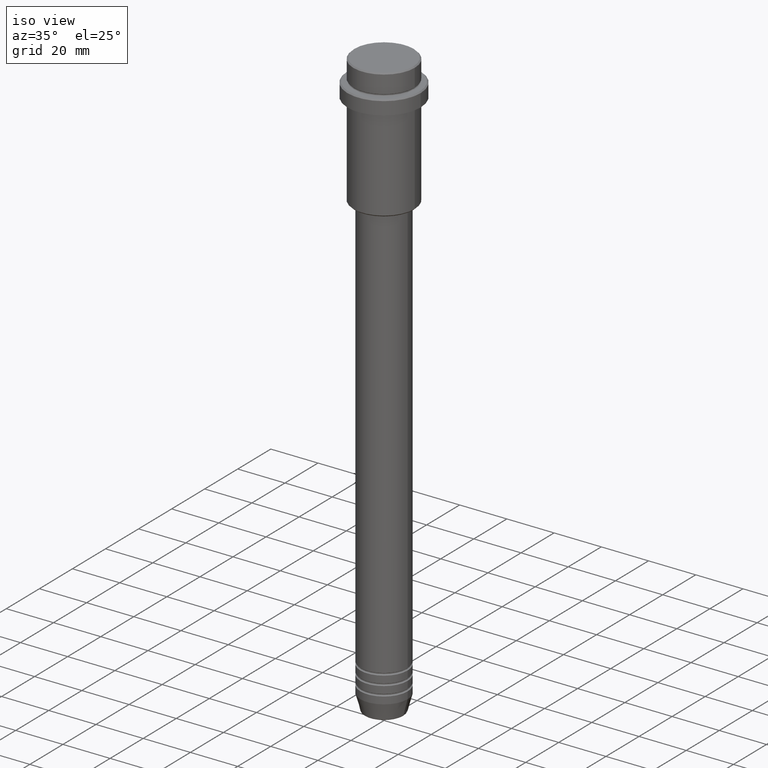
[diagram: clean part render]
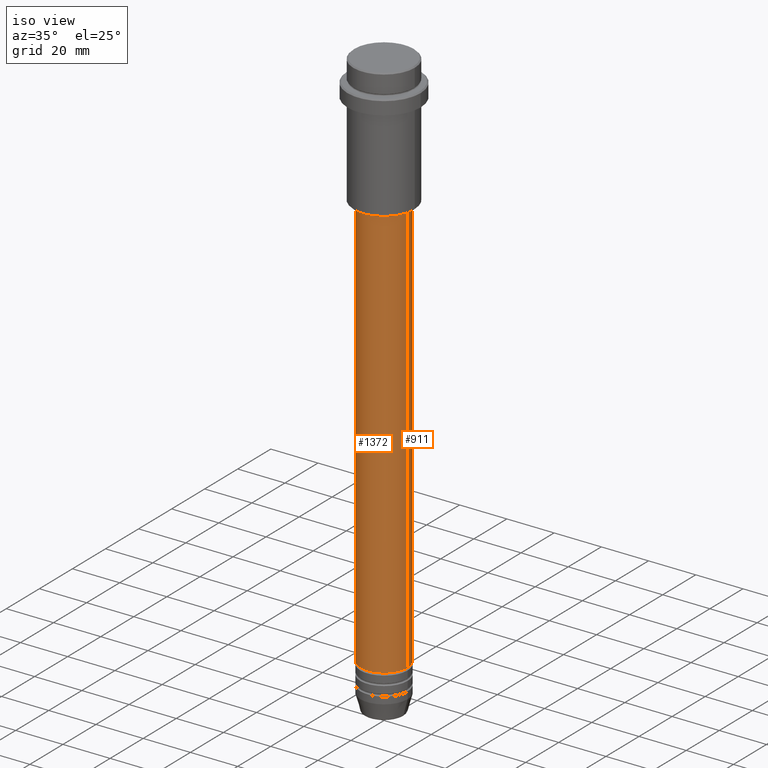
[diagram: same view with one multi-face feature highlighted, each face labeled with its STEP entity id]
A machine part, iso view. The highlighted faces form ONE feature: a constant-radius fillet chain: 2 tangent blend faces with common blend radius 10 mm. The faces share edges in the B-rep.
Their STEP definitions:
[1] entity #911 (Cylinder):
#42 = EDGE_CURVE ( 'NONE', #500, #678, #1108, .T. ) ;
#78 = CARTESIAN_POINT ( 'NONE',  ( 0.000000000000000000, 0.000000000000000000, -56.00000000000000000 ) ) ;
#85 = DIRECTION ( 'NONE',  ( 1.000000000000000000, 0.000000000000000000, 0.000000000000000000 ) ) ;
#99 = DIRECTION ( 'NONE',  ( 1.000000000000000000, 0.000000000000000000, 0.000000000000000000 ) ) ;
#102 = CARTESIAN_POINT ( 'NONE',  ( 10.00000000000000178, 0.000000000000000000, -56.00000000000000000 ) ) ;
#111 = CARTESIAN_POINT ( 'NONE',  ( -10.00000000000000178, 1.224646799147353454E-15, 0.000000000000000000 ) ) ;
#125 = VECTOR ( 'NONE', #1414, 1000.000000000000000 ) ;
#167 = EDGE_LOOP ( 'NONE', ( #940, #582, #616, #766 ) ) ;
#176 = CYLINDRICAL_SURFACE ( 'NONE', #1357, 10.00000000000000178 ) ;
#208 = DIRECTION ( 'NONE',  ( -0.000000000000000000, -0.000000000000000000, 1.000000000000000000 ) ) ;
#338 = LINE ( 'NONE', #653, #125 ) ;
#369 = VECTOR ( 'NONE', #1006, 1000.000000000000000 ) ;
#434 = CIRCLE ( 'NONE', #1242, 10.00000000000000178 ) ;
#500 = VERTEX_POINT ( 'NONE', #504 ) ;
#502 = EDGE_CURVE ( 'NONE', #1361, #808, #434, .T. ) ;
#504 = CARTESIAN_POINT ( 'NONE',  ( 10.00000000000000000, 0.000000000000000000, -230.9999999999998863 ) ) ;
#582 = ORIENTED_EDGE ( 'NONE', *, *, #1164, .T. ) ;
#593 = FACE_OUTER_BOUND ( 'NONE', #167, .T. ) ;
#605 = CARTESIAN_POINT ( 'NONE',  ( 0.000000000000000000, 0.000000000000000000, 0.000000000000000000 ) ) ;
#612 = EDGE_CURVE ( 'NONE', #500, #1361, #338, .T. ) ;
#616 = ORIENTED_EDGE ( 'NONE', *, *, #502, .F. ) ;
#653 = CARTESIAN_POINT ( 'NONE',  ( 10.00000000000000178, 0.000000000000000000, 0.000000000000000000 ) ) ;
#678 = VERTEX_POINT ( 'NONE', #1310 ) ;
#703 = AXIS2_PLACEMENT_3D ( 'NONE', #1079, #208, #963 ) ;
#766 = ORIENTED_EDGE ( 'NONE', *, *, #612, .F. ) ;
#808 = VERTEX_POINT ( 'NONE', #1359 ) ;
#911 = ADVANCED_FACE ( 'NONE', ( #593 ), #176, .T. ) ;
#940 = ORIENTED_EDGE ( 'NONE', *, *, #42, .T. ) ;
#963 = DIRECTION ( 'NONE',  ( 1.000000000000000000, 0.000000000000000000, 0.000000000000000000 ) ) ;
#1006 = DIRECTION ( 'NONE',  ( -0.000000000000000000, -0.000000000000000000, 1.000000000000000000 ) ) ;
#1055 = DIRECTION ( 'NONE',  ( -0.000000000000000000, -0.000000000000000000, 1.000000000000000000 ) ) ;
#1079 = CARTESIAN_POINT ( 'NONE',  ( 0.000000000000000000, 0.000000000000000000, -230.9999999999998863 ) ) ;
#1094 = LINE ( 'NONE', #111, #369 ) ;
#1108 = CIRCLE ( 'NONE', #703, 10.00000000000000000 ) ;
#1164 = EDGE_CURVE ( 'NONE', #678, #808, #1094, .T. ) ;
#1242 = AXIS2_PLACEMENT_3D ( 'NONE', #78, #1387, #99 ) ;
#1310 = CARTESIAN_POINT ( 'NONE',  ( -10.00000000000000000, 1.224646799147353256E-15, -230.9999999999998863 ) ) ;
#1357 = AXIS2_PLACEMENT_3D ( 'NONE', #605, #1055, #85 ) ;
#1359 = CARTESIAN_POINT ( 'NONE',  ( -10.00000000000000178, 1.224646799147353454E-15, -56.00000000000000000 ) ) ;
#1361 = VERTEX_POINT ( 'NONE', #102 ) ;
#1387 = DIRECTION ( 'NONE',  ( -0.000000000000000000, -0.000000000000000000, 1.000000000000000000 ) ) ;
#1414 = DIRECTION ( 'NONE',  ( -0.000000000000000000, -0.000000000000000000, 1.000000000000000000 ) ) ;
[2] entity #1372 (Cylinder):
#30 = ORIENTED_EDGE ( 'NONE', *, *, #612, .T. ) ;
#102 = CARTESIAN_POINT ( 'NONE',  ( 10.00000000000000178, 0.000000000000000000, -56.00000000000000000 ) ) ;
#111 = CARTESIAN_POINT ( 'NONE',  ( -10.00000000000000178, 1.224646799147353454E-15, 0.000000000000000000 ) ) ;
#125 = VECTOR ( 'NONE', #1414, 1000.000000000000000 ) ;
#138 = DIRECTION ( 'NONE',  ( -0.000000000000000000, -0.000000000000000000, 1.000000000000000000 ) ) ;
#146 = AXIS2_PLACEMENT_3D ( 'NONE', #1140, #138, #355 ) ;
#243 = AXIS2_PLACEMENT_3D ( 'NONE', #711, #1155, #1261 ) ;
#310 = CARTESIAN_POINT ( 'NONE',  ( 0.000000000000000000, 0.000000000000000000, 0.000000000000000000 ) ) ;
#338 = LINE ( 'NONE', #653, #125 ) ;
#341 = EDGE_CURVE ( 'NONE', #678, #500, #1040, .T. ) ;
#355 = DIRECTION ( 'NONE',  ( 1.000000000000000000, 0.000000000000000000, 0.000000000000000000 ) ) ;
#361 = ORIENTED_EDGE ( 'NONE', *, *, #341, .T. ) ;
#369 = VECTOR ( 'NONE', #1006, 1000.000000000000000 ) ;
#485 = AXIS2_PLACEMENT_3D ( 'NONE', #310, #1169, #743 ) ;
#500 = VERTEX_POINT ( 'NONE', #504 ) ;
#504 = CARTESIAN_POINT ( 'NONE',  ( 10.00000000000000000, 0.000000000000000000, -230.9999999999998863 ) ) ;
#612 = EDGE_CURVE ( 'NONE', #500, #1361, #338, .T. ) ;
#653 = CARTESIAN_POINT ( 'NONE',  ( 10.00000000000000178, 0.000000000000000000, 0.000000000000000000 ) ) ;
#678 = VERTEX_POINT ( 'NONE', #1310 ) ;
#711 = CARTESIAN_POINT ( 'NONE',  ( 0.000000000000000000, 0.000000000000000000, -56.00000000000000000 ) ) ;
#743 = DIRECTION ( 'NONE',  ( 1.000000000000000000, 0.000000000000000000, 0.000000000000000000 ) ) ;
#808 = VERTEX_POINT ( 'NONE', #1359 ) ;
#964 = FACE_OUTER_BOUND ( 'NONE', #1234, .T. ) ;
#1006 = DIRECTION ( 'NONE',  ( -0.000000000000000000, -0.000000000000000000, 1.000000000000000000 ) ) ;
#1040 = CIRCLE ( 'NONE', #146, 10.00000000000000000 ) ;
#1053 = ORIENTED_EDGE ( 'NONE', *, *, #1164, .F. ) ;
#1075 = ORIENTED_EDGE ( 'NONE', *, *, #1183, .F. ) ;
#1094 = LINE ( 'NONE', #111, #369 ) ;
#1140 = CARTESIAN_POINT ( 'NONE',  ( 0.000000000000000000, 0.000000000000000000, -230.9999999999998863 ) ) ;
#1155 = DIRECTION ( 'NONE',  ( -0.000000000000000000, -0.000000000000000000, 1.000000000000000000 ) ) ;
#1164 = EDGE_CURVE ( 'NONE', #678, #808, #1094, .T. ) ;
#1169 = DIRECTION ( 'NONE',  ( -0.000000000000000000, -0.000000000000000000, 1.000000000000000000 ) ) ;
#1183 = EDGE_CURVE ( 'NONE', #808, #1361, #1244, .T. ) ;
#1234 = EDGE_LOOP ( 'NONE', ( #1053, #361, #30, #1075 ) ) ;
#1244 = CIRCLE ( 'NONE', #243, 10.00000000000000178 ) ;
#1261 = DIRECTION ( 'NONE',  ( 1.000000000000000000, 0.000000000000000000, 0.000000000000000000 ) ) ;
#1310 = CARTESIAN_POINT ( 'NONE',  ( -10.00000000000000000, 1.224646799147353256E-15, -230.9999999999998863 ) ) ;
#1359 = CARTESIAN_POINT ( 'NONE',  ( -10.00000000000000178, 1.224646799147353454E-15, -56.00000000000000000 ) ) ;
#1361 = VERTEX_POINT ( 'NONE', #102 ) ;
#1372 = ADVANCED_FACE ( 'NONE', ( #964 ), #1379, .T. ) ;
#1379 = CYLINDRICAL_SURFACE ( 'NONE', #485, 10.00000000000000178 ) ;
#1414 = DIRECTION ( 'NONE',  ( -0.000000000000000000, -0.000000000000000000, 1.000000000000000000 ) ) ;